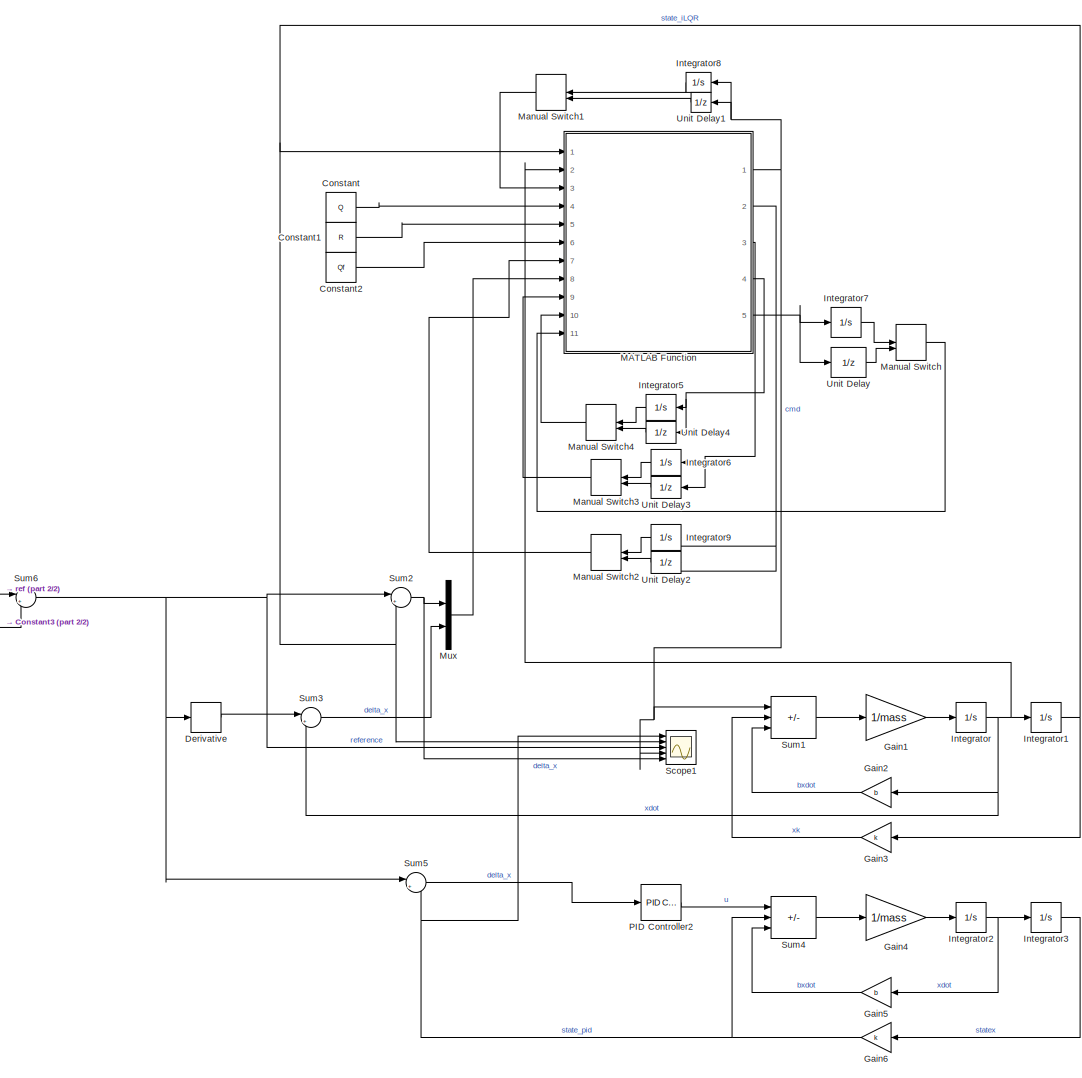
[diagram: root canvas - part 1/2, most of the canvas]
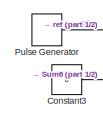
[diagram: root canvas - part 2/2, middle left region]
MODEL slx_6edc00cce7b8
KIND model
CONFIG AbsTol = auto
CONFIG EnableMultiTasking = off
CONFIG FixedStep = auto
CONFIG MaxStep = auto
CONFIG MinStep = auto
CONFIG RelTol = 1e-3
CONFIG SampleTimeConstraint = Unconstrained
CONFIG SolverName = VariableStepAuto
CONFIG StartTime = 0.0
CONFIG StopTime = 100
BLOCK [Constant] Constant
  Value = Q
BLOCK [Constant] Constant1
  Value = R
BLOCK [Constant] Constant2
  Value = Qf
BLOCK [Constant] Constant3
  Value = 0
BLOCK [Derivative] Derivative
BLOCK [Gain] Gain1
  Gain = 1/mass
BLOCK [Gain] Gain2
  Gain = b
BLOCK [Gain] Gain3
  Gain = k
BLOCK [Gain] Gain4
  Gain = 1/mass
BLOCK [Gain] Gain5
  Gain = b
BLOCK [Gain] Gain6
  Gain = k
BLOCK [Integrator] Integrator
  Ports = [1, 1]
BLOCK [Integrator] Integrator1
  Ports = [1, 1]
BLOCK [Integrator] Integrator2
  Ports = [1, 1]
BLOCK [Integrator] Integrator3
  Ports = [1, 1]
BLOCK [Integrator] Integrator5
  InitialCondition = Qf
  Ports = [1, 1]
BLOCK [Integrator] Integrator6
  InitialCondition = 10000
  Ports = [1, 1]
BLOCK [Integrator] Integrator7
  InitialCondition = eye(2)*5
  Ports = [1, 1]
BLOCK [Integrator] Integrator8
  Ports = [1, 1]
BLOCK [Integrator] Integrator9
  InitialCondition = zeros(2,1)
  Ports = [1, 1]
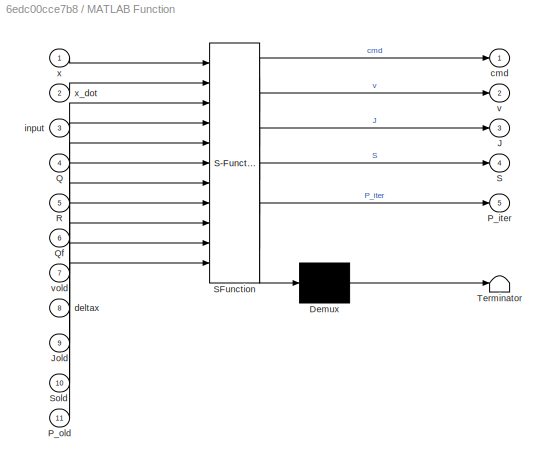
BLOCK [SubSystem] MATLAB Function
  ErrorFcn = Stateflow.Translate.translate
  PermitHierarchicalResolution = ExplicitOnly
  Ports = [11, 5]
  RequestExecContextInheritance = off
  SFBlockType = MATLAB Function
  TreatAsAtomicUnit = on
BLOCK [Demux] MATLAB Function/ Demux 
  Outputs = 1
  Ports = [1, 1]
BLOCK [S-Function] MATLAB Function/ SFunction 
  EnableBusSupport = on
  FunctionName = sf_sfun
  PortCounts = [11 6]
  Ports = [11, 6]
  SFcnIsStateOwnerBlock = off
  SFunctionDeploymentMode = off
  Tag = Stateflow S-Function 2
BLOCK [Terminator] MATLAB Function/ Terminator 
BLOCK [Outport] MATLAB Function/J
  Port = 3
BLOCK [Inport] MATLAB Function/Jold
  Port = 9
BLOCK [Outport] MATLAB Function/P_iter
  Port = 5
BLOCK [Inport] MATLAB Function/P_old
  Port = 11
BLOCK [Inport] MATLAB Function/Q
  Port = 4
BLOCK [Inport] MATLAB Function/Qf
  Port = 6
BLOCK [Inport] MATLAB Function/R
  Port = 5
BLOCK [Outport] MATLAB Function/S
  Port = 4
BLOCK [Inport] MATLAB Function/Sold
  Port = 10
BLOCK [Outport] MATLAB Function/cmd
BLOCK [Inport] MATLAB Function/deltax
  Port = 8
BLOCK [Inport] MATLAB Function/input
  Port = 3
BLOCK [Outport] MATLAB Function/v
  Port = 2
BLOCK [Inport] MATLAB Function/vold
  Port = 7
BLOCK [Inport] MATLAB Function/x
BLOCK [Inport] MATLAB Function/x_dot
  Port = 2
BLOCK [ManualSwitch] Manual Switch
BLOCK [ManualSwitch] Manual Switch1
BLOCK [ManualSwitch] Manual Switch2
BLOCK [ManualSwitch] Manual Switch3
BLOCK [ManualSwitch] Manual Switch4
BLOCK [Mux] Mux
  DisplayOption = bar
  Inputs = 2
  Ports = [2, 1]
BLOCK [Reference] PID Controller2  REF=pid_lib/PID Controller
  Ports = [1, 1]
  SourceBlock = pid_lib/PID Controller
  SourceProductBaseCode = SL
  SourceType = PID 1dof
BLOCK [DiscretePulseGenerator] Pulse Generator
  Period = 20
  Ports = [0, 1]
  PulseType = Time based
  PulseWidth = 50
BLOCK [Scope] Scope1
  Floating = off
  NumInputPorts = 5
  Ports = [5]
  ScopeSpecificationString = Simulink.scopes.TimeScopeBlockCfg('CurrentConfiguration', extmgr.ConfigurationSet(extmgr.Configuration('Core','General UI',true),extmgr.Configuration('Core','Source UI',true),extmgr.Configuration('Sources','WiredSimulink',true,'DataLoggingVariableName','ScopeData1'),extmgr.Configuration('Visuals','Time Domain',true,'SerializedDisplays',{struct('MinYLimReal','-5.8066','MaxYLimReal','15.30208','YLab...<+1600ch>
BLOCK [Sum] Sum1
  IconShape = rectangular
  Inputs = +--
  Ports = [3, 1]
BLOCK [Sum] Sum2
  Inputs = |+-
  Ports = [2, 1]
BLOCK [Sum] Sum3
  Inputs = |+-
  Ports = [2, 1]
BLOCK [Sum] Sum4
  IconShape = rectangular
  Inputs = +--
  Ports = [3, 1]
BLOCK [Sum] Sum5
  Inputs = |+-
  Ports = [2, 1]
BLOCK [Sum] Sum6
  Inputs = |++
  Ports = [2, 1]
BLOCK [UnitDelay] Unit Delay
  HasFrameUpgradeWarning = on
  InitialCondition = eye(2)*5
  SampleTime = -1
BLOCK [UnitDelay] Unit Delay1
  HasFrameUpgradeWarning = on
  SampleTime = -1
BLOCK [UnitDelay] Unit Delay2
  HasFrameUpgradeWarning = on
  InitialCondition = zeros(2,1)
  SampleTime = -1
BLOCK [UnitDelay] Unit Delay3
  HasFrameUpgradeWarning = on
  InitialCondition = 10000
  SampleTime = -1
BLOCK [UnitDelay] Unit Delay4
  HasFrameUpgradeWarning = on
  InitialCondition = Qf
  SampleTime = -1
LINE Constant1:1 -> MATLAB Function:5
LINE Constant2:1 -> MATLAB Function:6
LINE Constant3:1 -> Sum6:2
LINE Constant:1 -> MATLAB Function:4
LINE Derivative:1 -> Sum3:1
LINE Gain1:1 -> Integrator:1
LINE Gain2:1 -> Sum1:3
LINE Gain3:1 -> Sum1:2
LINE Gain4:1 -> Integrator2:1
LINE Gain5:1 -> Sum4:3
NET Gain6:1 -> Scope1:1, Sum4:2, Sum5:2
NET Integrator1:1 -> Gain3:1, MATLAB Function:1, Scope1:2, Sum2:2
NET Integrator2:1 -> Gain5:1, Integrator3:1
LINE Integrator3:1 -> Gain6:1
LINE Integrator5:1 -> Manual Switch4:1
LINE Integrator6:1 -> Manual Switch3:1
LINE Integrator7:1 -> Manual Switch:1
LINE Integrator8:1 -> Manual Switch1:1
LINE Integrator9:1 -> Manual Switch2:1
NET Integrator:1 -> Gain2:1, Integrator1:1, MATLAB Function:2, Sum3:2
NET MATLAB Function:1 -> Integrator8:1, Scope1:4, Sum1:1, Unit Delay1:1
NET MATLAB Function:2 -> Integrator9:1, Unit Delay2:1
NET MATLAB Function:3 -> Integrator6:1, Unit Delay3:1
NET MATLAB Function:4 -> Integrator5:1, Unit Delay4:1
NET MATLAB Function:5 -> Integrator7:1, Unit Delay:1
LINE Manual Switch1:1 -> MATLAB Function:3
LINE Manual Switch2:1 -> MATLAB Function:7
LINE Manual Switch3:1 -> MATLAB Function:9
LINE Manual Switch4:1 -> MATLAB Function:10
LINE Manual Switch:1 -> MATLAB Function:11
LINE Mux:1 -> MATLAB Function:8
LINE PID Controller2:1 -> Sum4:1
LINE Pulse Generator:1 -> Sum6:1
LINE Sum1:1 -> Gain1:1
NET Sum2:1 -> Mux:1, Scope1:5
LINE Sum3:1 -> Mux:2
LINE Sum4:1 -> Gain4:1
LINE Sum5:1 -> PID Controller2:1
NET Sum6:1 -> Derivative:1, Scope1:3, Sum2:1, Sum5:1
LINE Unit Delay1:1 -> Manual Switch1:2
LINE Unit Delay2:1 -> Manual Switch2:2
LINE Unit Delay3:1 -> Manual Switch3:2
LINE Unit Delay4:1 -> Manual Switch4:2
LINE Unit Delay:1 -> Manual Switch:2
note: NET lines group one-source signal fan-out (src -> all destinations, sorted); 1:1 wires keep LINE
CHART MATLAB Function states=1 transitions=1
  STATE_LABEL 'eML_blk_kernel()'
  STATE_LABEL "SCRIPT:\nfunction [cmd, v, J, S, P_iter]= fcn(x,x_dot, input, Q, R, Qf, vold, deltax, Jold, Sold,P_old)\n\n% r = 0.02;\n% B = 0.185;\n% dt = 0.01;\nk = 1;\nb = 3;\nmass = 1;\n\n\ntoll = 3*10^-5;\n\nA = [0 1;...\n     -k/mass -b/mass];\nB = [0;1];\nstate = [x,x_dot];\nJ = state*Qf*state'+state*Q*state'+input*R*input';\ncmd = zeros(1,1);\n\nif abs(Jold-J)/Jold > toll\n    K  = (B'*Sold*B+R)\\B'*Sold*A;\n    Kv = (B'*Sold*...<+589ch>"
CHART  states=0 transitions=0
